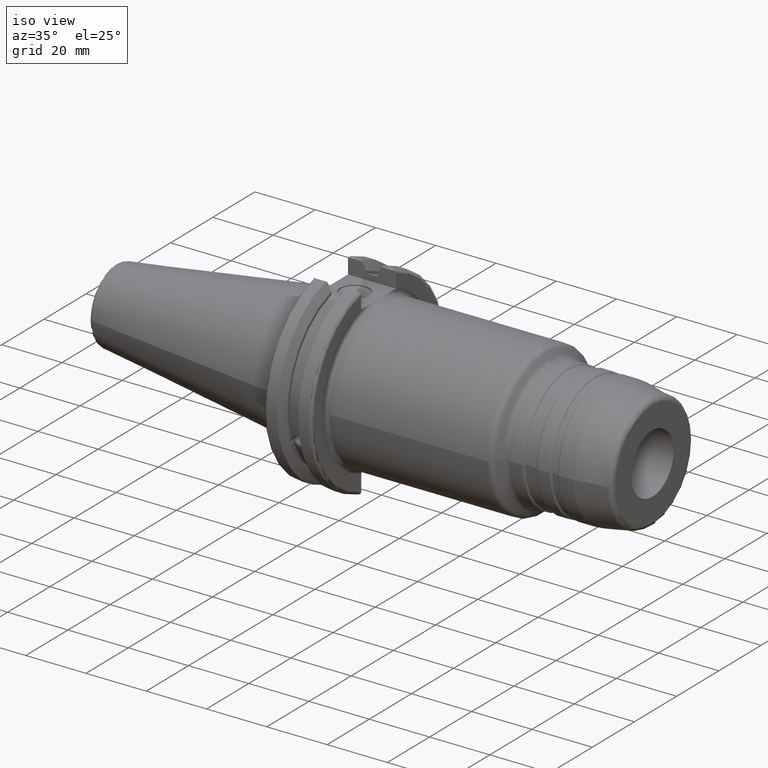
[diagram: clean part render]
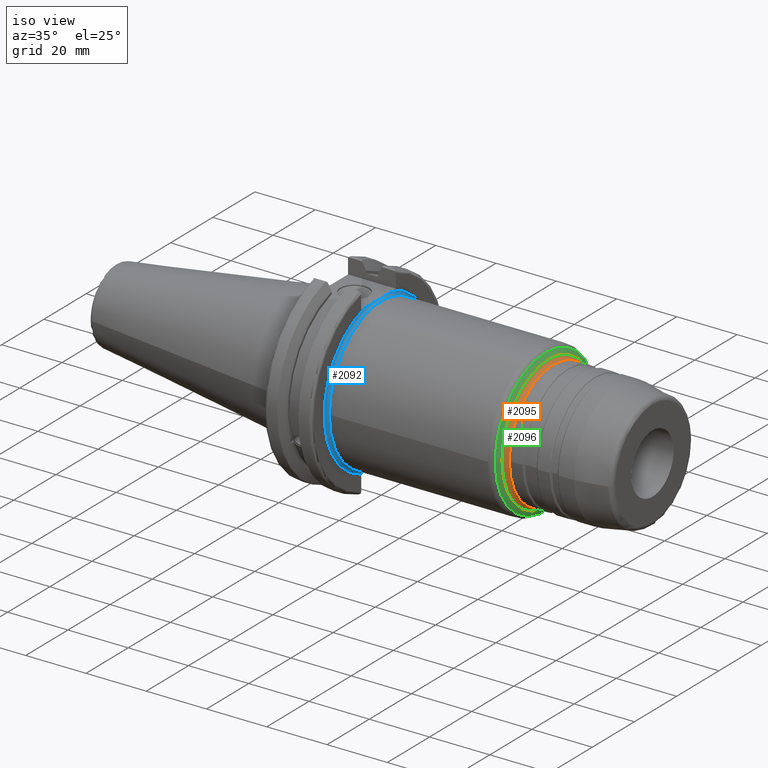
[diagram: same view with three faces highlighted in distinct colors, each labeled with its STEP entity id]
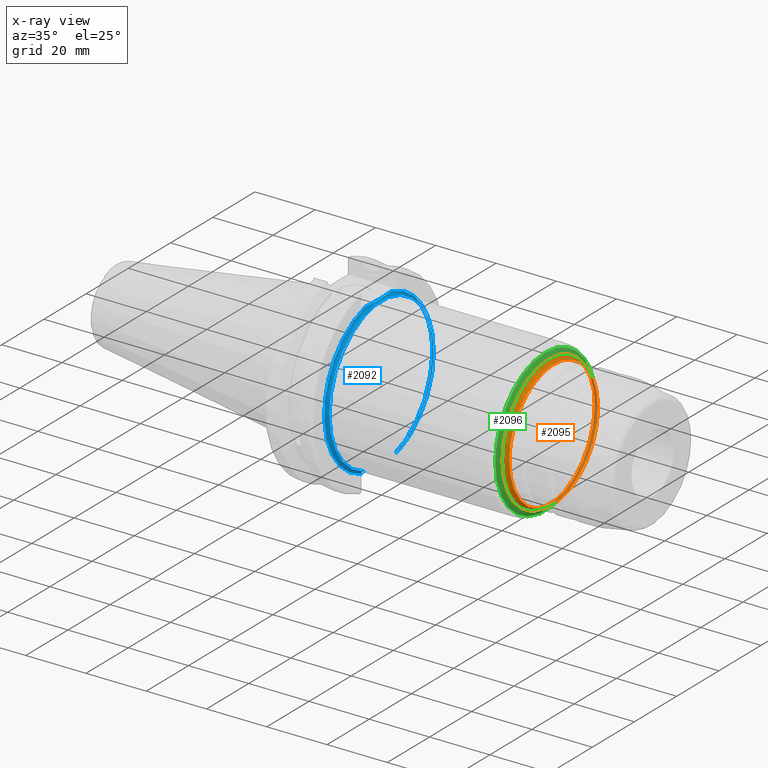
[diagram: x-ray of the same camera — body ghosted, the three highlighted faces saturated]
A machine part, iso view with three faces highlighted in distinct colors.
The next image is the same camera in x-ray (body ghosted, the three faces saturated) — at least one of them is partly hidden behind the body in this view.
Their STEP definitions:

[orange] entity #2095 — the highlighted toroidal blend (fillet) surface has major radius 23 mm and minor (blend) radius 2 mm.
#94=TOROIDAL_SURFACE('',#2310,23.,2.);
#196=FACE_OUTER_BOUND('',#305,.T.);
#305=EDGE_LOOP('',(#1553,#1554,#1555,#1556,#1557,#1558,#1559,#1560));
#661=CIRCLE('',#2294,21.);
#662=CIRCLE('',#2295,21.);
#663=CIRCLE('',#2296,21.);
#673=CIRCLE('',#2311,22.);
#674=CIRCLE('',#2312,2.);
#675=CIRCLE('',#2313,22.);
#676=CIRCLE('',#2314,22.);
#836=VERTEX_POINT('',#3459);
#837=VERTEX_POINT('',#3461);
#838=VERTEX_POINT('',#3463);
#852=VERTEX_POINT('',#3545);
#853=VERTEX_POINT('',#3546);
#854=VERTEX_POINT('',#3549);
#1101=EDGE_CURVE('',#837,#836,#661,.T.);
#1102=EDGE_CURVE('',#838,#837,#662,.T.);
#1103=EDGE_CURVE('',#836,#838,#663,.T.);
#1121=EDGE_CURVE('',#852,#853,#673,.T.);
#1122=EDGE_CURVE('',#853,#838,#674,.T.);
#1123=EDGE_CURVE('',#853,#854,#675,.T.);
#1124=EDGE_CURVE('',#854,#852,#676,.T.);
#1553=ORIENTED_EDGE('',*,*,#1121,.T.);
#1554=ORIENTED_EDGE('',*,*,#1122,.T.);
#1555=ORIENTED_EDGE('',*,*,#1102,.T.);
#1556=ORIENTED_EDGE('',*,*,#1101,.T.);
#1557=ORIENTED_EDGE('',*,*,#1103,.T.);
#1558=ORIENTED_EDGE('',*,*,#1122,.F.);
#1559=ORIENTED_EDGE('',*,*,#1123,.T.);
#1560=ORIENTED_EDGE('',*,*,#1124,.T.);
#2095=ADVANCED_FACE('',(#196),#94,.F.);
#2294=AXIS2_PLACEMENT_3D('',#3462,#2713,#2714);
#2295=AXIS2_PLACEMENT_3D('',#3464,#2715,#2716);
#2296=AXIS2_PLACEMENT_3D('',#3465,#2717,#2718);
#2310=AXIS2_PLACEMENT_3D('',#3544,#2749,#2750);
#2311=AXIS2_PLACEMENT_3D('',#3547,#2751,#2752);
#2312=AXIS2_PLACEMENT_3D('',#3548,#2753,#2754);
#2313=AXIS2_PLACEMENT_3D('',#3550,#2755,#2756);
#2314=AXIS2_PLACEMENT_3D('',#3551,#2757,#2758);
#2713=DIRECTION('center_axis',(-1.,0.,0.));
#2714=DIRECTION('ref_axis',(0.,-1.,1.83697019872103E-16));
#2715=DIRECTION('center_axis',(-1.,0.,0.));
#2716=DIRECTION('ref_axis',(0.,-1.,1.83697019872103E-16));
#2717=DIRECTION('center_axis',(-1.,0.,0.));
#2718=DIRECTION('ref_axis',(0.,-1.,1.83697019872103E-16));
#2749=DIRECTION('center_axis',(1.,0.,0.));
#2750=DIRECTION('ref_axis',(0.,0.,-1.));
#2751=DIRECTION('center_axis',(1.,0.,0.));
#2752=DIRECTION('ref_axis',(0.,-1.,3.06161699786838E-17));
#2753=DIRECTION('center_axis',(0.,-1.,-1.22464679914735E-16));
#2754=DIRECTION('ref_axis',(0.,-1.22464679914735E-16,1.));
#2755=DIRECTION('center_axis',(1.,0.,0.));
#2756=DIRECTION('ref_axis',(0.,-1.,3.06161699786838E-17));
#2757=DIRECTION('center_axis',(1.,0.,0.));
#2758=DIRECTION('ref_axis',(0.,-1.,3.06161699786838E-17));
#3459=CARTESIAN_POINT('',(77.1547005383792,-21.,-2.57175827820944E-15));
#3461=CARTESIAN_POINT('',(77.1547005383792,21.,-6.4293956955236E-15));
#3462=CARTESIAN_POINT('Origin',(77.1547005383792,0.,0.));
#3463=CARTESIAN_POINT('',(77.1547005383792,-2.57175827820944E-15,21.));
#3464=CARTESIAN_POINT('Origin',(77.1547005383792,0.,0.));
#3465=CARTESIAN_POINT('Origin',(77.1547005383792,0.,0.));
#3544=CARTESIAN_POINT('Origin',(77.1547005383792,0.,0.));
#3545=CARTESIAN_POINT('',(75.4226497308104,22.,-1.34711147906209E-15));
#3546=CARTESIAN_POINT('',(75.4226497308104,-2.69422295812418E-15,22.));
#3547=CARTESIAN_POINT('Origin',(75.4226497308104,0.,-3.36777869765522E-15));
#3548=CARTESIAN_POINT('Origin',(77.1547005383792,-2.81668763803891E-15,
23.));
#3549=CARTESIAN_POINT('',(75.4226497308104,-22.,-2.69422295812418E-15));
#3550=CARTESIAN_POINT('Origin',(75.4226497308104,0.,-3.36777869765522E-15));
#3551=CARTESIAN_POINT('Origin',(75.4226497308104,0.,-3.36777869765522E-15));

[blue] entity #2092 — the highlighted toroidal blend (fillet) surface has major radius 25.75 mm and minor (blend) radius 1 mm.
#93=TOROIDAL_SURFACE('',#2299,25.75,1.);
#139=B_SPLINE_CURVE_WITH_KNOTS('',3,(#3471,#3472,#3473,#3474,#3475,#3476,
#3477,#3478,#3479,#3480),.UNSPECIFIED.,.F.,.F.,(4,2,2,2,4),(1.28229186042809,
1.47392183654147,1.862003561099,2.25008528565654,2.44171526176992),
 .UNSPECIFIED.);
#140=B_SPLINE_CURVE_WITH_KNOTS('',3,(#3484,#3485,#3486,#3487,#3488,#3489,
#3490,#3491,#3492,#3493),.UNSPECIFIED.,.F.,.F.,(4,2,2,2,4),(0.152036209068872,
0.19179652975479,0.230554749961229,0.268011696377573,0.304368806480559),
 .UNSPECIFIED.);
#141=B_SPLINE_CURVE_WITH_KNOTS('',3,(#3499,#3500,#3501,#3502,#3503,#3504,
#3505,#3506,#3507,#3508),.UNSPECIFIED.,.F.,.F.,(4,2,2,2,4),(0.304368806480559,
0.340725916583545,0.378182862999889,0.416941083206328,0.456701403892246),
 .UNSPECIFIED.);
#193=FACE_OUTER_BOUND('',#302,.T.);
#302=EDGE_LOOP('',(#1533,#1534,#1535,#1536,#1537,#1538,#1539));
#665=CIRCLE('',#2300,25.75);
#666=CIRCLE('',#2301,24.75);
#667=CIRCLE('',#2302,24.75);
#668=CIRCLE('',#2303,25.75);
#839=VERTEX_POINT('',#3469);
#840=VERTEX_POINT('',#3470);
#841=VERTEX_POINT('',#3481);
#842=VERTEX_POINT('',#3483);
#843=VERTEX_POINT('',#3494);
#844=VERTEX_POINT('',#3496);
#845=VERTEX_POINT('',#3498);
#1105=EDGE_CURVE('',#839,#840,#139,.F.);
#1106=EDGE_CURVE('',#839,#841,#665,.T.);
#1107=EDGE_CURVE('',#841,#842,#140,.T.);
#1108=EDGE_CURVE('',#842,#843,#666,.T.);
#1109=EDGE_CURVE('',#843,#844,#667,.T.);
#1110=EDGE_CURVE('',#844,#845,#141,.T.);
#1111=EDGE_CURVE('',#845,#840,#668,.T.);
#1533=ORIENTED_EDGE('',*,*,#1105,.F.);
#1534=ORIENTED_EDGE('',*,*,#1106,.T.);
#1535=ORIENTED_EDGE('',*,*,#1107,.T.);
#1536=ORIENTED_EDGE('',*,*,#1108,.T.);
#1537=ORIENTED_EDGE('',*,*,#1109,.T.);
#1538=ORIENTED_EDGE('',*,*,#1110,.T.);
#1539=ORIENTED_EDGE('',*,*,#1111,.T.);
#2092=ADVANCED_FACE('',(#193),#93,.F.);
#2299=AXIS2_PLACEMENT_3D('',#3468,#2723,#2724);
#2300=AXIS2_PLACEMENT_3D('',#3482,#2725,#2726);
#2301=AXIS2_PLACEMENT_3D('',#3495,#2727,#2728);
#2302=AXIS2_PLACEMENT_3D('',#3497,#2729,#2730);
#2303=AXIS2_PLACEMENT_3D('',#3509,#2731,#2732);
#2723=DIRECTION('center_axis',(-1.,0.,0.));
#2724=DIRECTION('ref_axis',(0.,0.,1.));
#2725=DIRECTION('center_axis',(1.,0.,0.));
#2726=DIRECTION('ref_axis',(0.,6.12323399573677E-17,1.));
#2727=DIRECTION('center_axis',(-1.,0.,0.));
#2728=DIRECTION('ref_axis',(0.,6.12323399573676E-17,1.));
#2729=DIRECTION('center_axis',(-1.,0.,0.));
#2730=DIRECTION('ref_axis',(0.,6.12323399573676E-17,1.));
#2731=DIRECTION('center_axis',(1.,0.,0.));
#2732=DIRECTION('ref_axis',(0.,6.12323399573677E-17,1.));
#3468=CARTESIAN_POINT('Origin',(20.05,0.,0.));
#3469=CARTESIAN_POINT('',(19.05,-6.16948133962656,25.));
#3470=CARTESIAN_POINT('',(19.05,6.16948133962656,25.));
#3471=CARTESIAN_POINT('Ctrl Pts',(19.05,6.16948133962656,25.));
#3472=CARTESIAN_POINT('Ctrl Pts',(19.05,5.53071475258196,25.));
#3473=CARTESIAN_POINT('Ctrl Pts',(19.0917093675371,4.76533047486058,25.));
#3474=CARTESIAN_POINT('Ctrl Pts',(19.2334466867335,2.83816328553264,25.));
#3475=CARTESIAN_POINT('Ctrl Pts',(19.3885621722339,1.29360574852511,25.));
#3476=CARTESIAN_POINT('Ctrl Pts',(19.3885621722339,-1.29360574852511,25.));
#3477=CARTESIAN_POINT('Ctrl Pts',(19.2334466867335,-2.83816328553264,25.));
#3478=CARTESIAN_POINT('Ctrl Pts',(19.0917093675371,-4.76533047486058,25.));
#3479=CARTESIAN_POINT('Ctrl Pts',(19.05,-5.53071475258196,25.));
#3480=CARTESIAN_POINT('Ctrl Pts',(19.05,-6.16948133962656,25.));
#3481=CARTESIAN_POINT('',(19.05,-8.19,-24.4128326910254));
#3482=CARTESIAN_POINT('Origin',(19.05,0.,0.));
#3483=CARTESIAN_POINT('',(20.05,-8.19,-23.3556502799644));
#3484=CARTESIAN_POINT('Ctrl Pts',(19.05,-8.19,-24.4128326910254));
#3485=CARTESIAN_POINT('Ctrl Pts',(19.05,-8.19,-24.280298288739));
#3486=CARTESIAN_POINT('Ctrl Pts',(19.079885359023,-8.19,-24.124090110551));
#3487=CARTESIAN_POINT('Ctrl Pts',(19.177275426903,-8.19,-23.8811560320461));
#3488=CARTESIAN_POINT('Ctrl Pts',(19.2609009617474,-8.19,-23.7506111583087));
#3489=CARTESIAN_POINT('Ctrl Pts',(19.4373931081247,-8.19,-23.5678758115065));
#3490=CARTESIAN_POINT('Ctrl Pts',(19.5602603745075,-8.19,-23.4821320058467));
#3491=CARTESIAN_POINT('Ctrl Pts',(19.7864204604307,-8.19,-23.3852265342659));
#3492=CARTESIAN_POINT('Ctrl Pts',(19.92880963299,-8.19,-23.3556502799644));
#3493=CARTESIAN_POINT('Ctrl Pts',(20.05,-8.19,-23.3556502799644));
#3494=CARTESIAN_POINT('',(20.05,-24.75,-3.0310008278897E-15));
#3495=CARTESIAN_POINT('Origin',(20.05,0.,0.));
#3496=CARTESIAN_POINT('',(20.05,8.19,-23.3556502799644));
#3497=CARTESIAN_POINT('Origin',(20.05,0.,0.));
#3498=CARTESIAN_POINT('',(19.05,8.19,-24.4128326910254));
#3499=CARTESIAN_POINT('Ctrl Pts',(20.05,8.19,-23.3556502799644));
#3500=CARTESIAN_POINT('Ctrl Pts',(19.92880963299,8.19,-23.3556502799644));
#3501=CARTESIAN_POINT('Ctrl Pts',(19.7864204604307,8.19,-23.3852265342659));
#3502=CARTESIAN_POINT('Ctrl Pts',(19.5602603745075,8.19,-23.4821320058467));
#3503=CARTESIAN_POINT('Ctrl Pts',(19.4373931081247,8.19,-23.5678758115065));
#3504=CARTESIAN_POINT('Ctrl Pts',(19.2609009617474,8.19,-23.7506111583087));
#3505=CARTESIAN_POINT('Ctrl Pts',(19.177275426903,8.19,-23.8811560320461));
#3506=CARTESIAN_POINT('Ctrl Pts',(19.079885359023,8.19,-24.124090110551));
#3507=CARTESIAN_POINT('Ctrl Pts',(19.05,8.19,-24.280298288739));
#3508=CARTESIAN_POINT('Ctrl Pts',(19.05,8.19,-24.4128326910254));
#3509=CARTESIAN_POINT('Origin',(19.05,0.,0.));

[green] entity #2096 — the highlighted conical surface has half-angle 60 deg.
#108=CONICAL_SURFACE('',#2315,22.875,1.0471975511966);
#197=FACE_OUTER_BOUND('',#306,.T.);
#306=EDGE_LOOP('',(#1561,#1562,#1563,#1564,#1565,#1566,#1567,#1568));
#413=LINE('',#3554,#507);
#507=VECTOR('',#2761,22.875);
#673=CIRCLE('',#2311,22.);
#675=CIRCLE('',#2313,22.);
#676=CIRCLE('',#2314,22.);
#677=CIRCLE('',#2316,23.75);
#678=CIRCLE('',#2317,23.75);
#679=CIRCLE('',#2318,23.75);
#852=VERTEX_POINT('',#3545);
#853=VERTEX_POINT('',#3546);
#854=VERTEX_POINT('',#3549);
#855=VERTEX_POINT('',#3553);
#856=VERTEX_POINT('',#3555);
#857=VERTEX_POINT('',#3557);
#1121=EDGE_CURVE('',#852,#853,#673,.T.);
#1123=EDGE_CURVE('',#853,#854,#675,.T.);
#1124=EDGE_CURVE('',#854,#852,#676,.T.);
#1125=EDGE_CURVE('',#854,#855,#413,.T.);
#1126=EDGE_CURVE('',#856,#855,#677,.T.);
#1127=EDGE_CURVE('',#857,#856,#678,.T.);
#1128=EDGE_CURVE('',#855,#857,#679,.T.);
#1561=ORIENTED_EDGE('',*,*,#1121,.F.);
#1562=ORIENTED_EDGE('',*,*,#1124,.F.);
#1563=ORIENTED_EDGE('',*,*,#1125,.T.);
#1564=ORIENTED_EDGE('',*,*,#1126,.F.);
#1565=ORIENTED_EDGE('',*,*,#1127,.F.);
#1566=ORIENTED_EDGE('',*,*,#1128,.F.);
#1567=ORIENTED_EDGE('',*,*,#1125,.F.);
#1568=ORIENTED_EDGE('',*,*,#1123,.F.);
#2096=ADVANCED_FACE('',(#197),#108,.T.);
#2311=AXIS2_PLACEMENT_3D('',#3547,#2751,#2752);
#2313=AXIS2_PLACEMENT_3D('',#3550,#2755,#2756);
#2314=AXIS2_PLACEMENT_3D('',#3551,#2757,#2758);
#2315=AXIS2_PLACEMENT_3D('',#3552,#2759,#2760);
#2316=AXIS2_PLACEMENT_3D('',#3556,#2762,#2763);
#2317=AXIS2_PLACEMENT_3D('',#3558,#2764,#2765);
#2318=AXIS2_PLACEMENT_3D('',#3559,#2766,#2767);
#2751=DIRECTION('center_axis',(1.,0.,0.));
#2752=DIRECTION('ref_axis',(0.,-1.,3.06161699786838E-17));
#2755=DIRECTION('center_axis',(1.,0.,0.));
#2756=DIRECTION('ref_axis',(0.,-1.,3.06161699786838E-17));
#2757=DIRECTION('center_axis',(1.,0.,0.));
#2758=DIRECTION('ref_axis',(0.,-1.,3.06161699786838E-17));
#2759=DIRECTION('center_axis',(-1.,0.,0.));
#2760=DIRECTION('ref_axis',(0.,1.,0.));
#2761=DIRECTION('',(-0.499999999999998,-0.86602540378444,-1.06057523872491E-16));
#2762=DIRECTION('center_axis',(-1.,0.,0.));
#2763=DIRECTION('ref_axis',(0.,-1.,3.06161699786838E-17));
#2764=DIRECTION('center_axis',(-1.,0.,0.));
#2765=DIRECTION('ref_axis',(0.,-1.,3.06161699786838E-17));
#2766=DIRECTION('center_axis',(-1.,0.,0.));
#2767=DIRECTION('ref_axis',(0.,-1.,3.06161699786838E-17));
#3545=CARTESIAN_POINT('',(75.4226497308104,22.,-1.34711147906209E-15));
#3546=CARTESIAN_POINT('',(75.4226497308104,-2.69422295812418E-15,22.));
#3547=CARTESIAN_POINT('Origin',(75.4226497308104,0.,-3.36777869765522E-15));
#3549=CARTESIAN_POINT('',(75.4226497308104,-22.,-2.69422295812418E-15));
#3550=CARTESIAN_POINT('Origin',(75.4226497308104,0.,-3.36777869765522E-15));
#3551=CARTESIAN_POINT('Origin',(75.4226497308104,0.,-3.36777869765522E-15));
#3552=CARTESIAN_POINT('Origin',(74.9174682452694,0.,0.));
#3553=CARTESIAN_POINT('',(74.4122867597285,-23.75,-2.90853614797496E-15));
#3554=CARTESIAN_POINT('',(74.9174682452694,-22.875,-2.80137955304957E-15));
#3555=CARTESIAN_POINT('',(74.4122867597285,23.75,-7.27134036993741E-15));
#3556=CARTESIAN_POINT('Origin',(74.4122867597285,0.,-3.63567018496871E-15));
#3557=CARTESIAN_POINT('',(74.4122867597285,-2.90853614797496E-15,23.75));
#3558=CARTESIAN_POINT('Origin',(74.4122867597285,0.,-3.63567018496871E-15));
#3559=CARTESIAN_POINT('Origin',(74.4122867597285,0.,-3.63567018496871E-15));